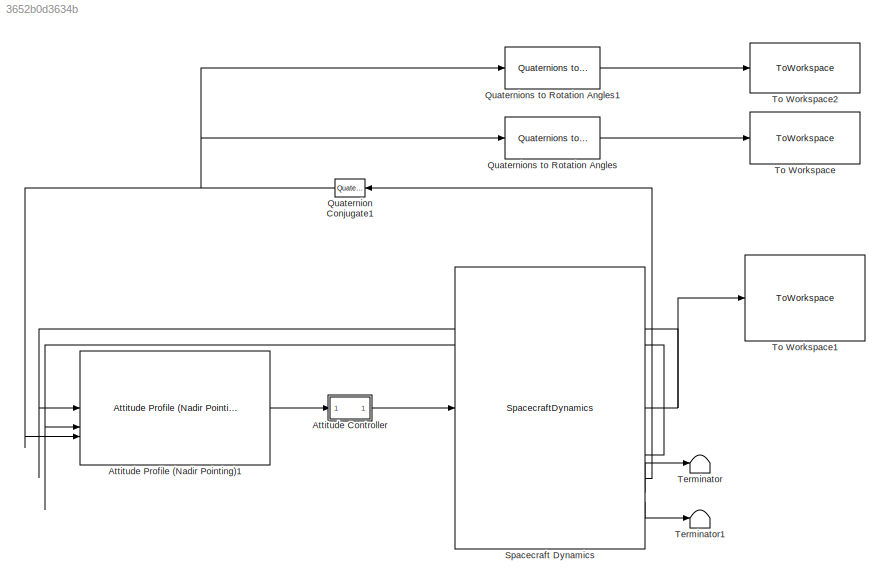
MODEL slx_3652b0d3634b
KIND model
CONFIG AbsTol = auto
CONFIG EnableMultiTasking = off
CONFIG FixedStep = auto
CONFIG MaxStep = auto
CONFIG MinStep = auto
CONFIG RelTol = 1e-3
CONFIG SampleTimeConstraint = Unconstrained
CONFIG SolverName = VariableStepAuto
CONFIG StartTime = 0.0
CONFIG StopTime = 11603
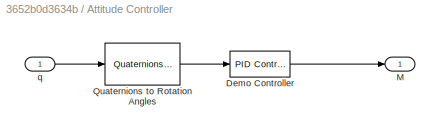
BLOCK [SubSystem] Attitude Controller
BLOCK [Reference] Attitude Controller/Demo Controller  REF=slpidlib/PID Controller
  SourceBlock = slpidlib/PID Controller
  SourceType = PID 1dof
BLOCK [Outport] Attitude Controller/M
BLOCK [Reference] Attitude Controller/Quaternions to Rotation Angles  REF=sharedtransform/Quaternions to Rotation Angles
  AttributesFormatString = Rotation Order: %<rotationOrder>
  SourceBlock = sharedtransform/Quaternions to Rotation Angles
  SourceType = Quat2Ang
BLOCK [Inport] Attitude Controller/q
BLOCK [Reference] Attitude Profile (Nadir Pointing)1  REF=aerolibsatdyn/Attitude Profile
(Nadir Pointing)
  SourceBlock = aerolibsatdyn/Attitude Profile\n(Nadir Pointing)
  SourceType = Attitude Profile
BLOCK [Reference] Quaternion Conjugate1  REF=aerolibutil/Quaternion
Conjugate
  SourceBlock = aerolibutil/Quaternion\nConjugate
  SourceType = Quaternion Conjugate
BLOCK [Reference] Quaternions to Rotation Angles  REF=sharedtransform/Quaternions to Rotation Angles
  AttributesFormatString = Rotation Order: %<rotationOrder>
  LibrarySourceBlock = aerolibtransform2/Quaternions to Rotation Angles
  SourceBlock = sharedtransform/Quaternions to Rotation Angles
  SourceType = Quat2Ang
BLOCK [Reference] Quaternions to Rotation Angles1  REF=sharedtransform/Quaternions to Rotation Angles
  AttributesFormatString = Rotation Order: %<rotationOrder>
  LibrarySourceBlock = aerolibtransform2/Quaternions to Rotation Angles
  SourceBlock = sharedtransform/Quaternions to Rotation Angles
  SourceType = Quat2Ang
BLOCK [SpacecraftDynamics] Spacecraft Dynamics
  F107ExtrapMethod = Least squares fit
  MagneticIndexExtrapMethod = IGRF
  argPeriapsis = 0
  attitude = [0.3044 0.3044 -0.6383 0.6382]
  attitudeRate = [0 0 0]
  dragArea = 0.03
  eccentricity = 0.05
  eclipseFractionSrc = Port
  forcesIn = off
  inclination = 51
  inertia = [0.0333 0 0 ; 0 0.0333 0 ; 0 0 0.0067]
  mass = 3.99
  orbitType = Circular inclined
  raan = 90
  rotationOrder = YXY
  semiMajorAxis = 6978137
  srpArea = 0.02
  startDate = 2460301
  trueAnomaly = 200
  useEOPs = off
BLOCK [Terminator] Terminator
BLOCK [Terminator] Terminator1
BLOCK [ToWorkspace] To Workspace
  FixptAsFi = on
  MaxDataPoints = inf
  SampleTime = 1
  SaveFormat = Timeseries
  VariableName = eul_XYZ
BLOCK [ToWorkspace] To Workspace1
  FixptAsFi = on
  MaxDataPoints = inf
  SampleTime = 1
  SaveFormat = Timeseries
  VariableName = R_position
BLOCK [ToWorkspace] To Workspace2
  FixptAsFi = on
  MaxDataPoints = inf
  SampleTime = 1
  SaveFormat = Timeseries
  VariableName = eul_ZYX
LINE Attitude Controller/Demo Controller:1 -> Attitude Controller/M:1
LINE Attitude Controller/Quaternions to Rotation Angles:1 -> Attitude Controller/Demo Controller:1
LINE Attitude Controller/q:1 -> Attitude Controller/Quaternions to Rotation Angles:1
LINE Attitude Controller:1 -> Spacecraft Dynamics:1
LINE Attitude Profile (Nadir Pointing)1:1 -> Attitude Controller:1
NET Quaternion Conjugate1:1 -> Attitude Profile (Nadir Pointing)1:3, Quaternions to Rotation Angles1:1, Quaternions to Rotation Angles:1
LINE Quaternions to Rotation Angles1:1 -> To Workspace2:1
LINE Quaternions to Rotation Angles:1 -> To Workspace:1
NET Spacecraft Dynamics:1 -> Attitude Profile (Nadir Pointing)1:1, To Workspace1:1
LINE Spacecraft Dynamics:2 -> Attitude Profile (Nadir Pointing)1:2
LINE Spacecraft Dynamics:3 -> Quaternion Conjugate1:1
LINE Spacecraft Dynamics:4 -> Terminator:1
LINE Spacecraft Dynamics:5 -> Terminator1:1
note: NET lines group one-source signal fan-out (src -> all destinations, sorted); 1:1 wires keep LINE
